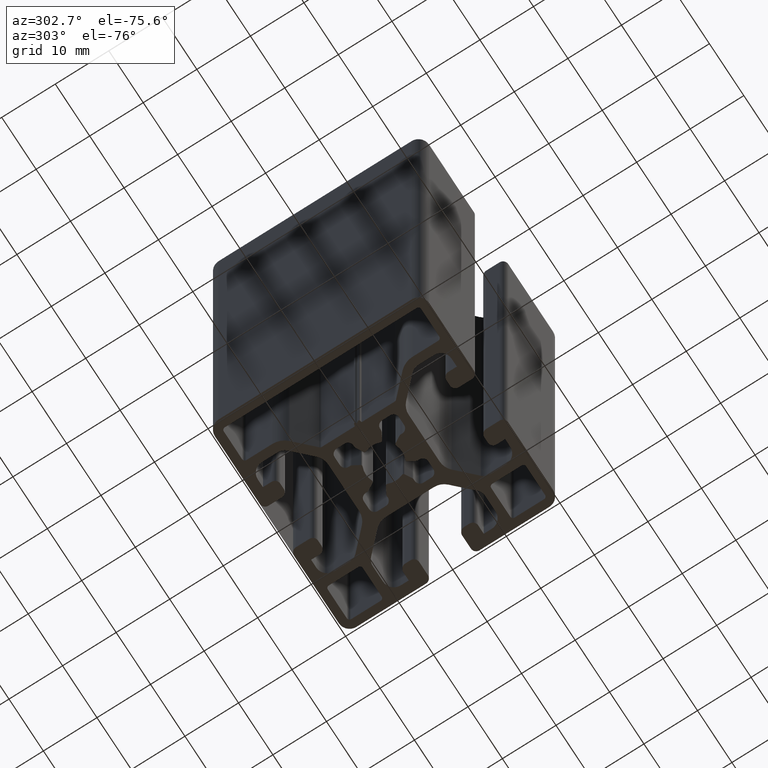
[diagram: clean part render]
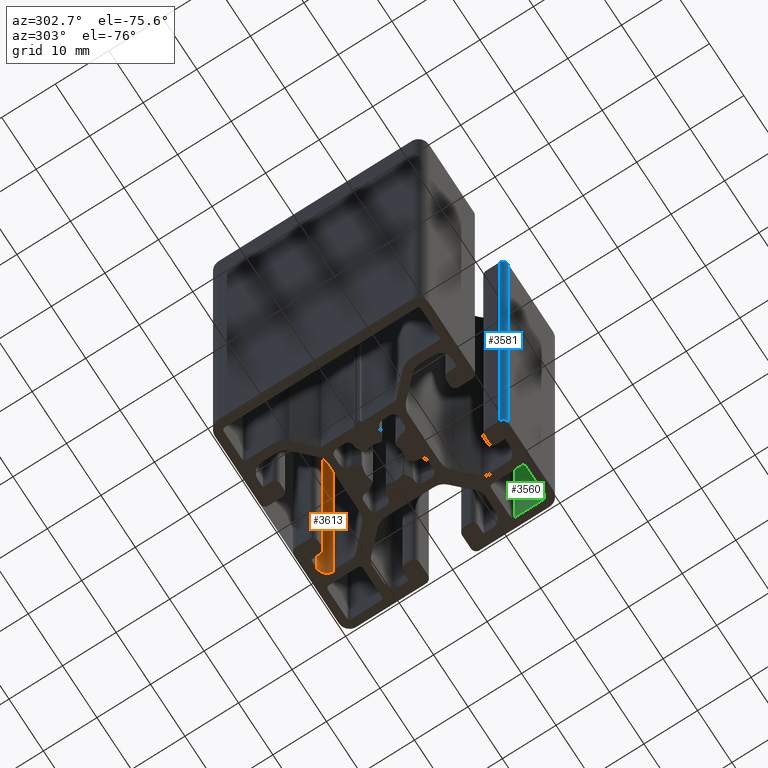
[diagram: same view with three faces highlighted in distinct colors, each labeled with its STEP entity id]
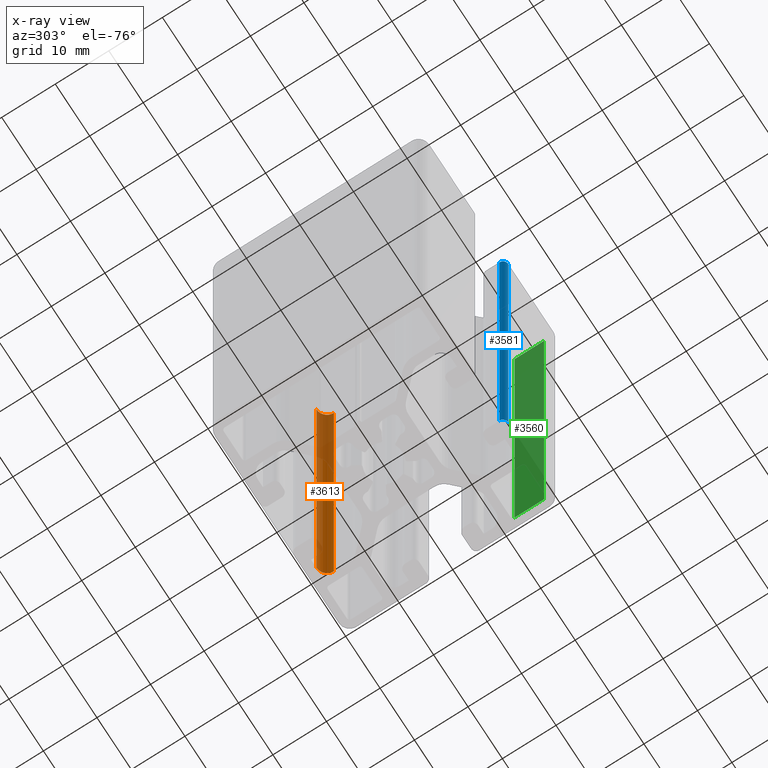
[diagram: x-ray of the same camera — body ghosted, the three highlighted faces saturated]
A machine part, auxiliary view with three faces highlighted in distinct colors.
The next image is the same camera in x-ray (body ghosted, the three faces saturated) — at least one of them is partly hidden behind the body in this view.
Their STEP definitions:

[orange] entity #3613 — the highlighted cylindrical surface (edge-blend (fillet) strip) has radius 2 mm, axis along (0, 0, 1).
#250=FACE_OUTER_BOUND('',#433,.T.);
#433=EDGE_LOOP('',(#2833,#2834,#2835,#2836));
#756=LINE('',#5917,#1119);
#758=LINE('',#5923,#1121);
#1119=VECTOR('',#4825,100.);
#1121=VECTOR('',#4831,100.);
#1354=CIRCLE('',#3933,2.);
#1355=CIRCLE('',#3934,2.);
#1666=VERTEX_POINT('',#5914);
#1667=VERTEX_POINT('',#5916);
#1668=VERTEX_POINT('',#5920);
#1669=VERTEX_POINT('',#5922);
#2158=EDGE_CURVE('',#1667,#1666,#756,.T.);
#2160=EDGE_CURVE('',#1668,#1666,#1354,.T.);
#2161=EDGE_CURVE('',#1669,#1668,#758,.T.);
#2162=EDGE_CURVE('',#1667,#1669,#1355,.T.);
#2833=ORIENTED_EDGE('',*,*,#2160,.F.);
#2834=ORIENTED_EDGE('',*,*,#2161,.F.);
#2835=ORIENTED_EDGE('',*,*,#2162,.F.);
#2836=ORIENTED_EDGE('',*,*,#2158,.T.);
#3458=CYLINDRICAL_SURFACE('',#3932,2.);
#3613=ADVANCED_FACE('',(#250),#3458,.F.);
#3932=AXIS2_PLACEMENT_3D('',#5919,#4827,#4828);
#3933=AXIS2_PLACEMENT_3D('',#5921,#4829,#4830);
#3934=AXIS2_PLACEMENT_3D('',#5924,#4832,#4833);
#4825=DIRECTION('',(0.,0.,1.));
#4827=DIRECTION('center_axis',(0.,0.,1.));
#4828=DIRECTION('ref_axis',(1.,0.,0.));
#4829=DIRECTION('center_axis',(0.,0.,-1.));
#4830=DIRECTION('ref_axis',(1.,0.,0.));
#4831=DIRECTION('',(0.,0.,1.));
#4832=DIRECTION('center_axis',(0.,0.,1.));
#4833=DIRECTION('ref_axis',(1.,0.,0.));
#5914=CARTESIAN_POINT('',(10.5,16.099987,100.));
#5916=CARTESIAN_POINT('',(10.5,16.099987,0.));
#5917=CARTESIAN_POINT('',(10.5,16.099987,0.));
#5919=CARTESIAN_POINT('Origin',(8.49999999999999,16.099987,0.));
#5920=CARTESIAN_POINT('',(8.5,18.099987,100.));
#5921=CARTESIAN_POINT('Origin',(8.49999999999999,16.099987,100.));
#5922=CARTESIAN_POINT('',(8.5,18.099987,0.));
#5923=CARTESIAN_POINT('',(8.5,18.099987,0.));
#5924=CARTESIAN_POINT('Origin',(8.49999999999999,16.099987,0.));

[blue] entity #3581 — the highlighted cylindrical surface (edge-blend (fillet) strip) has radius 1 mm, axis along (0, 0, 1).
#218=FACE_OUTER_BOUND('',#401,.T.);
#401=EDGE_LOOP('',(#2705,#2706,#2707,#2708));
#690=LINE('',#5723,#1053);
#691=LINE('',#5727,#1054);
#1053=VECTOR('',#4635,100.);
#1054=VECTOR('',#4638,100.);
#1324=CIRCLE('',#3871,1.);
#1325=CIRCLE('',#3872,1.);
#1600=VERTEX_POINT('',#5719);
#1601=VERTEX_POINT('',#5721);
#1602=VERTEX_POINT('',#5725);
#1603=VERTEX_POINT('',#5726);
#2062=EDGE_CURVE('',#1601,#1600,#690,.T.);
#2063=EDGE_CURVE('',#1602,#1603,#691,.T.);
#2064=EDGE_CURVE('',#1600,#1602,#1324,.T.);
#2065=EDGE_CURVE('',#1603,#1601,#1325,.T.);
#2705=ORIENTED_EDGE('',*,*,#2063,.F.);
#2706=ORIENTED_EDGE('',*,*,#2064,.F.);
#2707=ORIENTED_EDGE('',*,*,#2062,.F.);
#2708=ORIENTED_EDGE('',*,*,#2065,.F.);
#3443=CYLINDRICAL_SURFACE('',#3870,1.);
#3581=ADVANCED_FACE('',(#218),#3443,.T.);
#3870=AXIS2_PLACEMENT_3D('',#5724,#4636,#4637);
#3871=AXIS2_PLACEMENT_3D('',#5728,#4639,#4640);
#3872=AXIS2_PLACEMENT_3D('',#5729,#4641,#4642);
#4635=DIRECTION('',(0.,0.,1.));
#4636=DIRECTION('center_axis',(0.,0.,1.));
#4637=DIRECTION('ref_axis',(1.,8.88178419700128E-15,0.));
#4638=DIRECTION('',(0.,0.,-1.));
#4639=DIRECTION('center_axis',(0.,0.,1.));
#4640=DIRECTION('ref_axis',(1.,8.88178419700128E-15,0.));
#4641=DIRECTION('center_axis',(0.,0.,-1.));
#4642=DIRECTION('ref_axis',(1.,8.88178419700128E-15,0.));
#5719=CARTESIAN_POINT('',(3.99999999999998,-19.000013,100.));
#5721=CARTESIAN_POINT('',(3.99999999999998,-19.000013,0.));
#5723=CARTESIAN_POINT('',(3.99999999999998,-19.000013,0.));
#5724=CARTESIAN_POINT('Origin',(4.99999999999997,-19.000013,0.));
#5725=CARTESIAN_POINT('',(4.99490099705863,-20.,100.));
#5726=CARTESIAN_POINT('',(4.99490099705863,-20.,0.));
#5727=CARTESIAN_POINT('',(4.99490099705863,-20.,0.));
#5728=CARTESIAN_POINT('Origin',(4.99999999999997,-19.000013,100.));
#5729=CARTESIAN_POINT('Origin',(4.99999999999997,-19.000013,0.));

[green] entity #3560 — the highlighted planar face has unit normal (1, 0, 0).
#62=PLANE('',#3829);
#197=FACE_OUTER_BOUND('',#380,.T.);
#380=EDGE_LOOP('',(#2621,#2622,#2623,#2624));
#647=LINE('',#5598,#1010);
#648=LINE('',#5600,#1011);
#649=LINE('',#5602,#1012);
#650=LINE('',#5603,#1013);
#1010=VECTOR('',#4512,5.49999999999999);
#1011=VECTOR('',#4513,100.);
#1012=VECTOR('',#4514,5.49999999999999);
#1013=VECTOR('',#4515,100.);
#1558=VERTEX_POINT('',#5596);
#1559=VERTEX_POINT('',#5597);
#1560=VERTEX_POINT('',#5599);
#1561=VERTEX_POINT('',#5601);
#1999=EDGE_CURVE('',#1558,#1559,#647,.T.);
#2000=EDGE_CURVE('',#1560,#1558,#648,.T.);
#2001=EDGE_CURVE('',#1561,#1560,#649,.T.);
#2002=EDGE_CURVE('',#1561,#1559,#650,.T.);
#2621=ORIENTED_EDGE('',*,*,#1999,.F.);
#2622=ORIENTED_EDGE('',*,*,#2000,.F.);
#2623=ORIENTED_EDGE('',*,*,#2001,.F.);
#2624=ORIENTED_EDGE('',*,*,#2002,.T.);
#3560=ADVANCED_FACE('',(#197),#62,.F.);
#3829=AXIS2_PLACEMENT_3D('',#5595,#4510,#4511);
#4510=DIRECTION('center_axis',(1.,0.,0.));
#4511=DIRECTION('ref_axis',(0.,1.,0.));
#4512=DIRECTION('',(0.,-1.,0.));
#4513=DIRECTION('',(0.,0.,1.));
#4514=DIRECTION('',(0.,1.,0.));
#4515=DIRECTION('',(0.,0.,1.));
#5595=CARTESIAN_POINT('Origin',(18.5,-18.000013,0.));
#5596=CARTESIAN_POINT('',(18.5,-12.500013,100.));
#5597=CARTESIAN_POINT('',(18.5,-18.000013,100.));
#5598=CARTESIAN_POINT('',(18.5,-9.0000065,100.));
#5599=CARTESIAN_POINT('',(18.5,-12.500013,0.));
#5600=CARTESIAN_POINT('',(18.5,-12.500013,0.));
#5601=CARTESIAN_POINT('',(18.5,-18.000013,0.));
#5602=CARTESIAN_POINT('',(18.5,-9.0000065,0.));
#5603=CARTESIAN_POINT('',(18.5,-18.000013,0.));